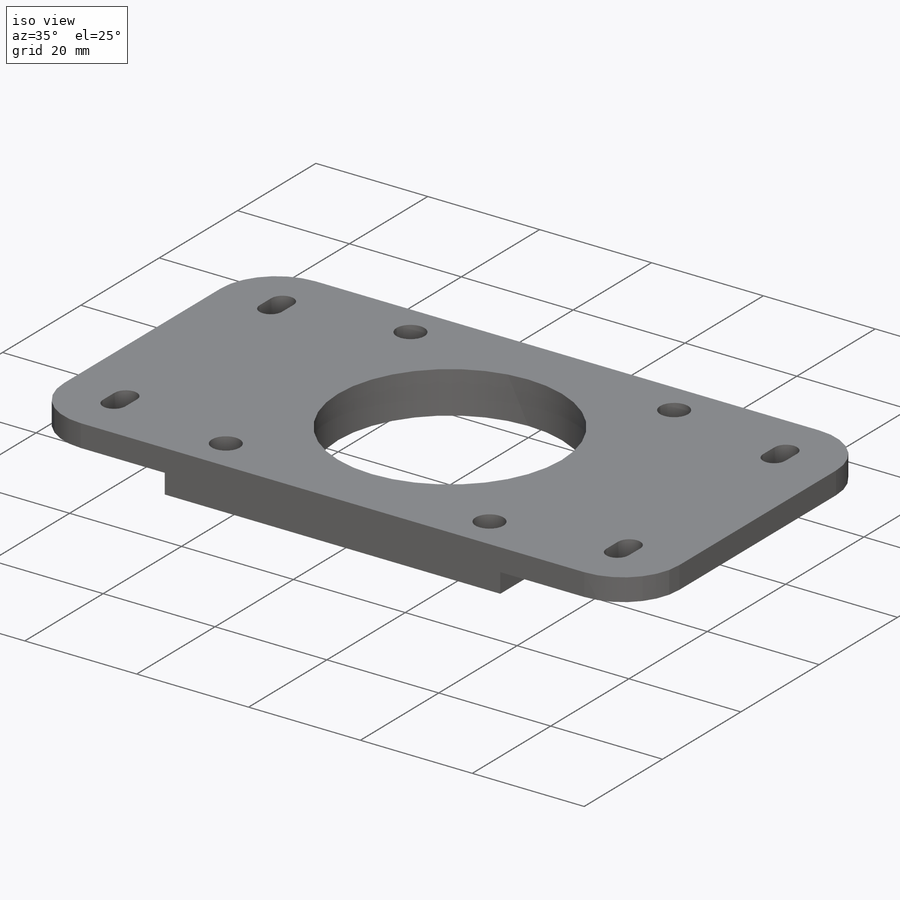
[diagram: iso view]
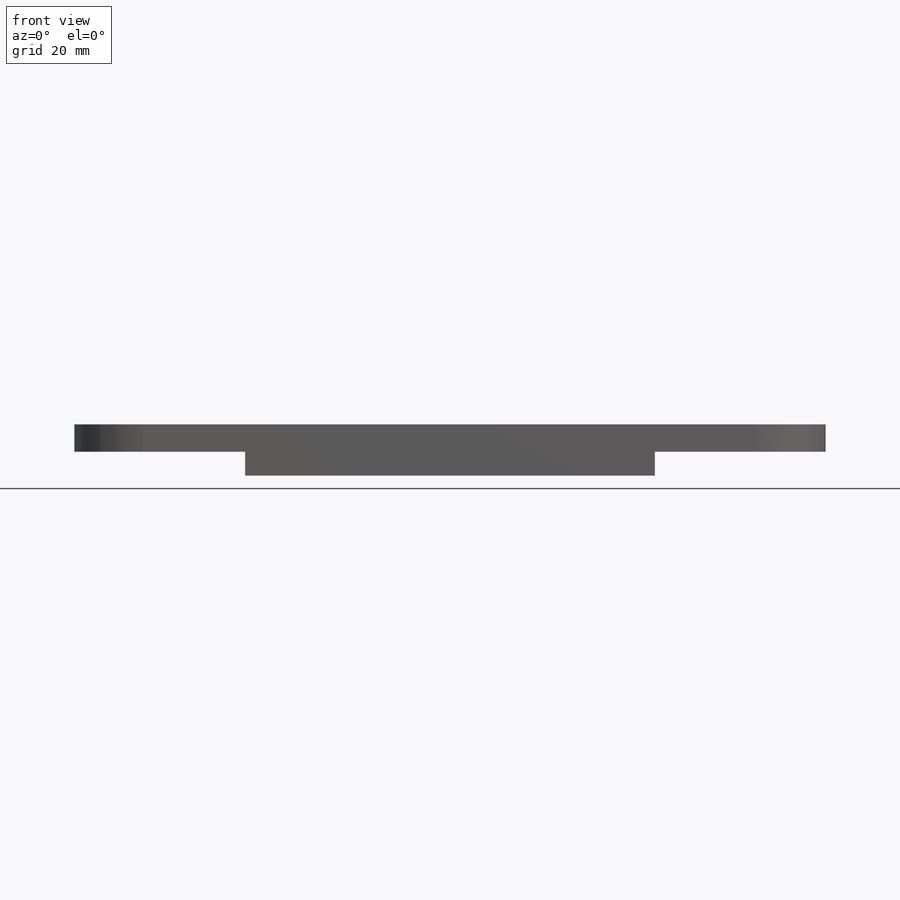
[diagram: front view]
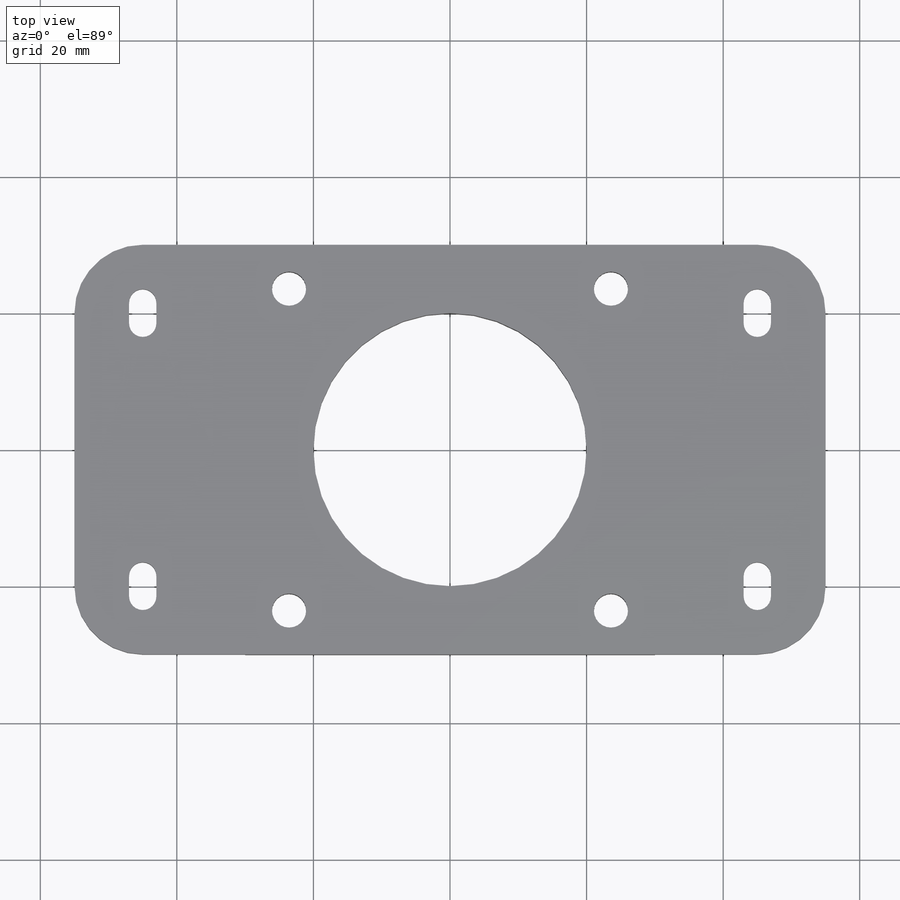
[diagram: top view]
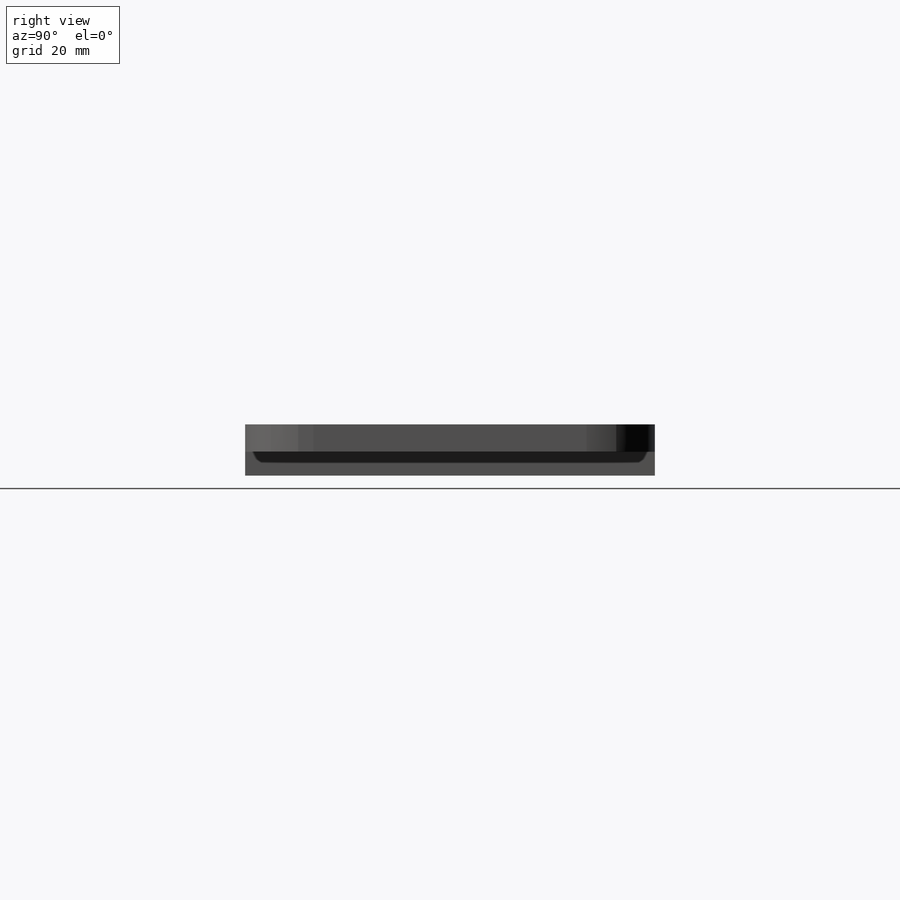
[diagram: right view]
SOLIDWORKS PART (.sldprt)
format: sldprt  version: not decoded by parser v0  size: 362,496 bytes
history: native  units: mm
features: sketch x4, extrude x2, material x1, hole x1 (+12 scaffold rows collapsed)
feature tree (20):
  scaffold x12  (default folders/planes/origin — collapsed)
  material  "Material <not specified>"
  sketch  "Sketch1"  dims[D3=40.0mm D1=60.0mm D2=60.0mm]
  extrude  "Boss-Extrude1"  Depth=3.5mm
  sketch  "Sketch2"  dims[D2=10.0mm D3=2.0mm D1=55.0mm D4=3.0mm D5=110.0mm]
  extrude  "Boss-Extrude2"  Depth=4mm
  hole  "Ø5.0 (5) Diameter Hole1"  Diameter=5mm Depth=25mm
  sketch  "Sketch3"
  sketch  "Sketch4"  dims[Hole Dia.=5.0mm Hole Depth=25.0mm Drill Angle=118.0deg]
decode coverage: 6 of 7 modeling features carry decoded parameters
note: suppression state not decoded; provenance and decode notes live in map.json
